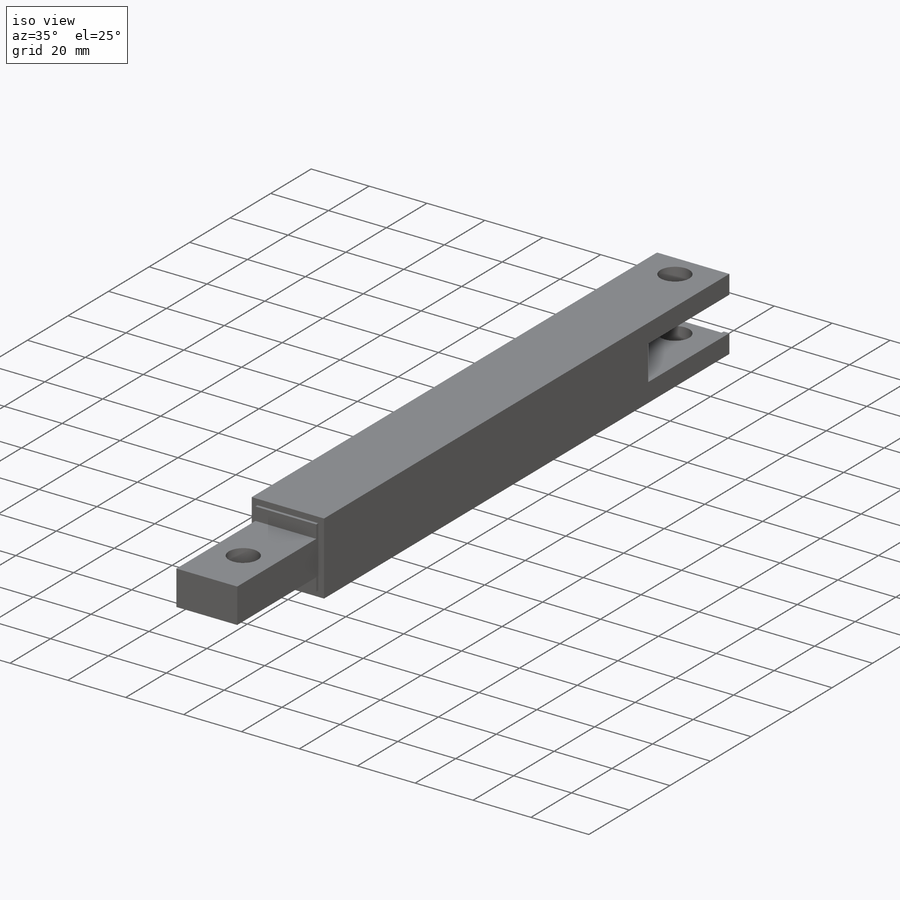
[diagram: iso view]
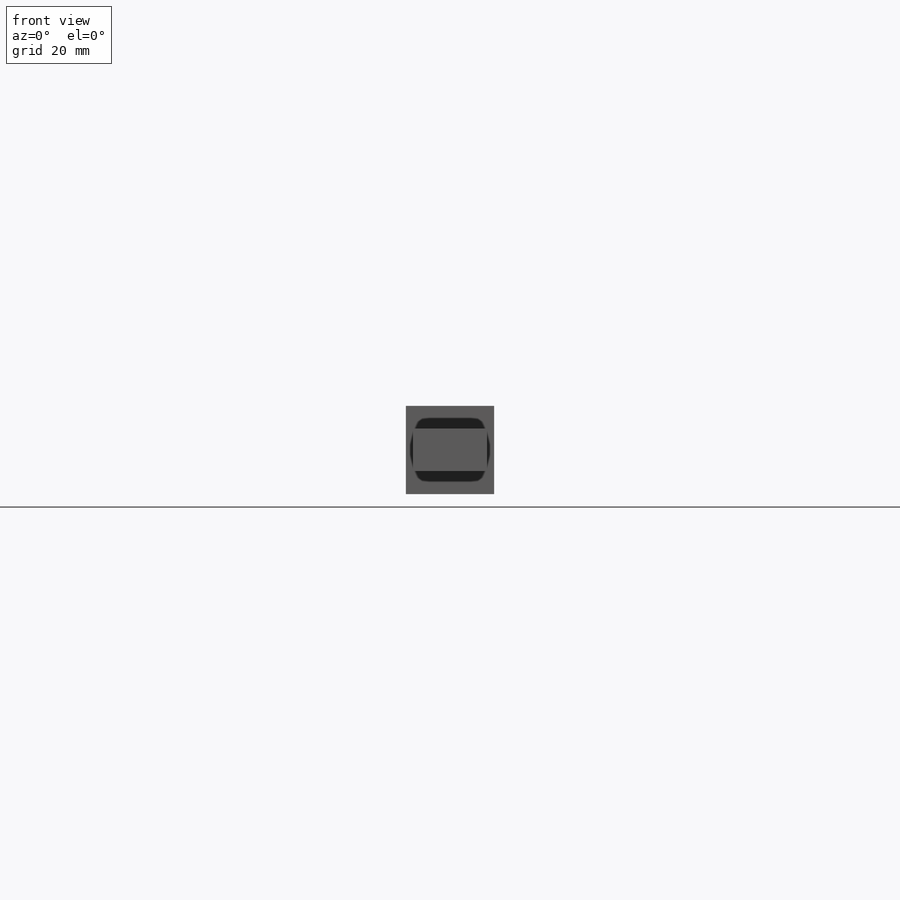
[diagram: front view]
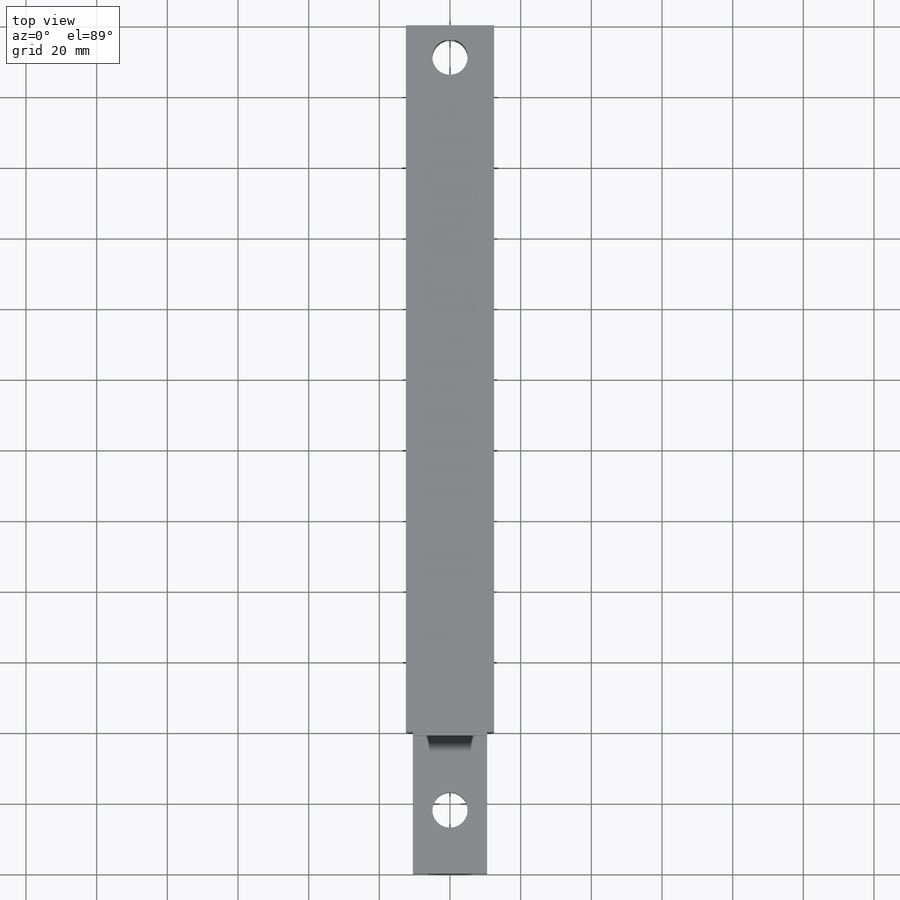
[diagram: top view]
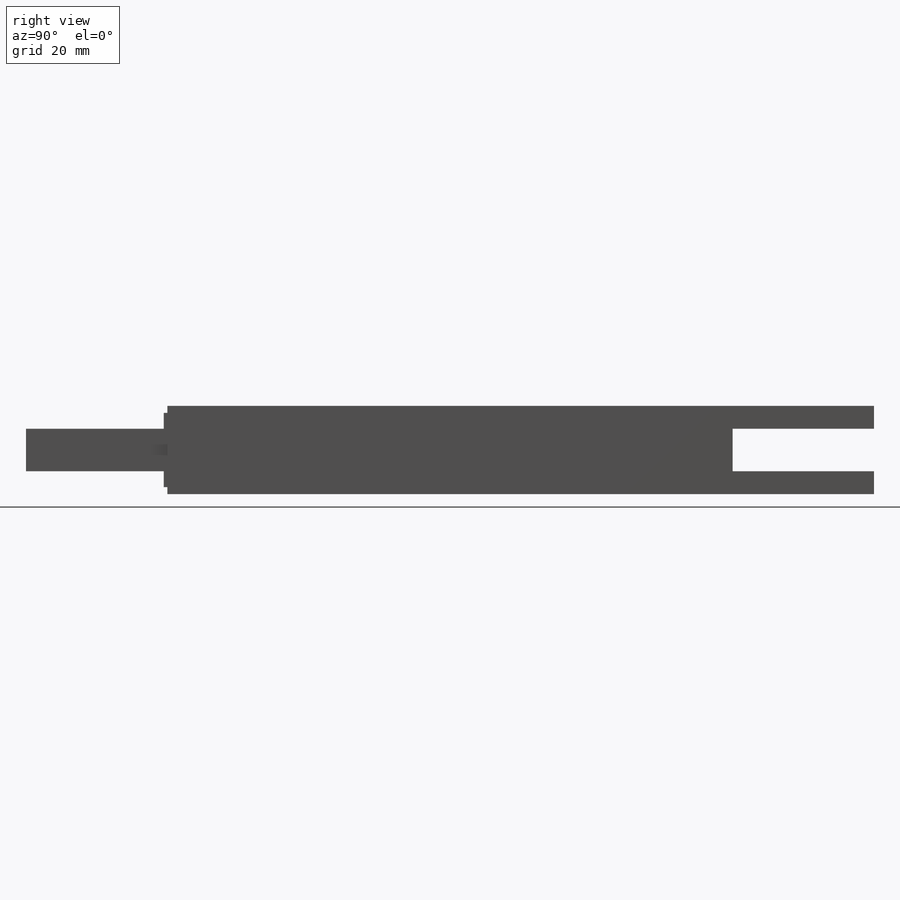
[diagram: right view]
SOLIDWORKS PART (.sldprt)
format: sldprt  version: not decoded by parser v0  size: 248,320 bytes
history: native  units: mm
features: sketch x8, cut_extrude x5, extrude x3, material x1, plane x1 + 1 further entry (+12 scaffold rows collapsed)
feature tree (31):
  scaffold x12  (default folders/planes/origin — collapsed)
  material  "Material <not specified>"
  "Annotations"  RD1=21mm
  sketch  "Sketch1"  dims[D1=25.0mm D2=25.0mm D3=2.0mm]
  extrude  "Boss-Extrude1"  Depth=200mm
  sketch  "Sketch2"  dims[D1=40.0mm D2=6.5mm D3=12.0mm D4=25.0mm]
  cut_extrude  "Cut-Extrude1"  [1 undecoded]
  sketch  "Sketch3"  dims[D1=10.0mm D2=4.0mm]
  cut_extrude  "Cut-Extrude2"  [1 undecoded]
  plane  "Plane1"  Offset=240mm
  sketch  "Sketch5"
  extrude  "Boss-Extrude2"  Depth=199mm
  cut_extrude  "Cut-Extrude4"  [1 undecoded]
  sketch  "Sketch3<2>"  dims[D1=239.0mm]
  sketch  "Sketch6"
  cut_extrude  "Cut-Extrude5"  [1 undecoded]
  sketch  "Sketch8"  dims[D1=12.0mm D2=4.5mm]
  extrude  "Boss-Extrude3"  Depth=40mm
  sketch  "Sketch9"  dims[D1=10.0mm D2=13.0mm]
  cut_extrude  "Cut-Extrude6"  [1 undecoded]
decode coverage: 9 of 16 modeling features carry decoded parameters; 1 rows unclassified (native names shown)
note: 5 parameter values undecoded
summary: no parameter record found for 5 features
note: suppression state not decoded; provenance and decode notes live in map.json
